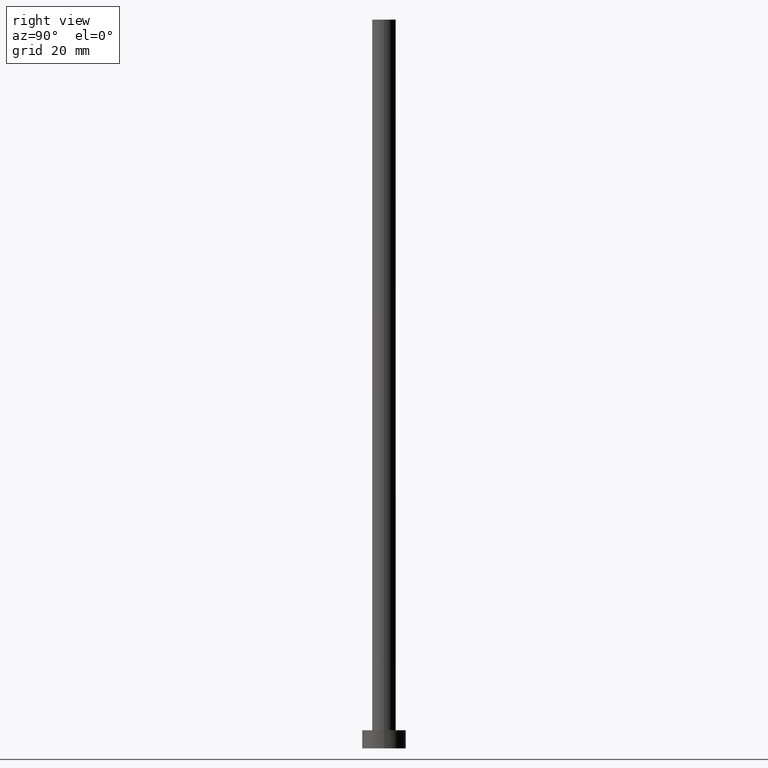
[diagram: clean part render]
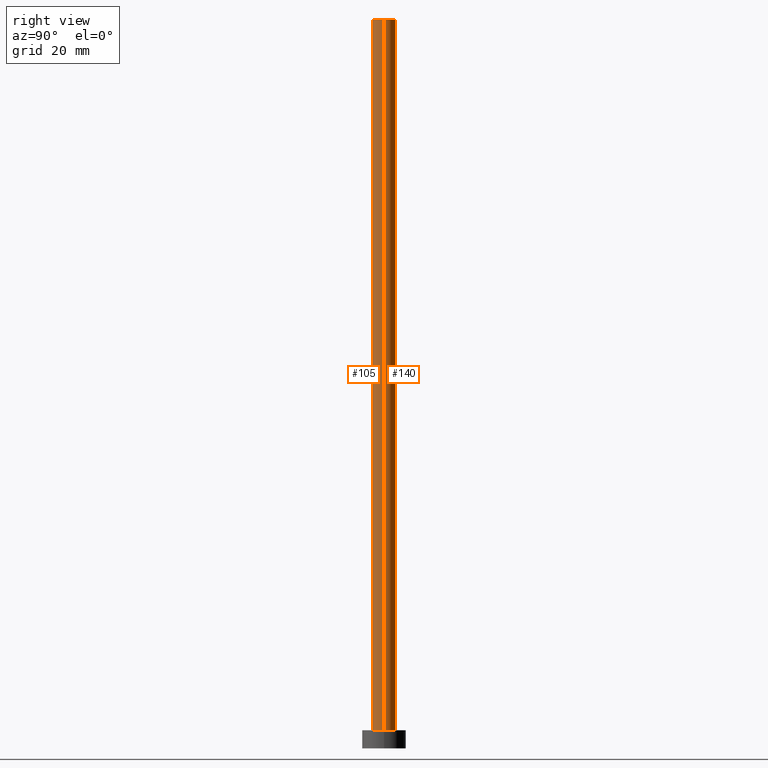
[diagram: same view with one multi-face feature highlighted, each face labeled with its STEP entity id]
A machine part, right view. The highlighted faces form ONE feature: a constant-radius fillet chain: 2 tangent blend faces with common blend radius 3.25 mm. The faces share edges in the B-rep.
Their STEP definitions:
[1] entity #105 (Cylinder):
#7 = VECTOR ( 'NONE', #47, 1000.000000000000000 ) ;
#9 = EDGE_CURVE ( 'NONE', #182, #213, #139, .T. ) ;
#10 = DIRECTION ( 'NONE',  ( 1.000000000000000000, 0.000000000000000000, 0.000000000000000000 ) ) ;
#24 = VERTEX_POINT ( 'NONE', #202 ) ;
#28 = ORIENTED_EDGE ( 'NONE', *, *, #206, .T. ) ;
#33 = ORIENTED_EDGE ( 'NONE', *, *, #9, .T. ) ;
#35 = ORIENTED_EDGE ( 'NONE', *, *, #44, .F. ) ;
#44 = EDGE_CURVE ( 'NONE', #71, #24, #45, .T. ) ;
#45 = LINE ( 'NONE', #200, #189 ) ;
#47 = DIRECTION ( 'NONE',  ( -0.000000000000000000, -0.000000000000000000, -1.000000000000000000 ) ) ;
#71 = VERTEX_POINT ( 'NONE', #142 ) ;
#72 = CYLINDRICAL_SURFACE ( 'NONE', #111, 3.250000000000000444 ) ;
#78 = FACE_OUTER_BOUND ( 'NONE', #253, .T. ) ;
#79 = EDGE_CURVE ( 'NONE', #182, #71, #216, .T. ) ;
#90 = DIRECTION ( 'NONE',  ( 1.000000000000000000, 0.000000000000000000, 0.000000000000000000 ) ) ;
#105 = ADVANCED_FACE ( 'NONE', ( #78 ), #72, .T. ) ;
#111 = AXIS2_PLACEMENT_3D ( 'NONE', #125, #133, #229 ) ;
#122 = AXIS2_PLACEMENT_3D ( 'NONE', #190, #207, #10 ) ;
#125 = CARTESIAN_POINT ( 'NONE',  ( 0.000000000000000000, 0.000000000000000000, 200.0000000000000000 ) ) ;
#133 = DIRECTION ( 'NONE',  ( -0.000000000000000000, -0.000000000000000000, -1.000000000000000000 ) ) ;
#139 = LINE ( 'NONE', #156, #7 ) ;
#141 = AXIS2_PLACEMENT_3D ( 'NONE', #226, #188, #90 ) ;
#142 = CARTESIAN_POINT ( 'NONE',  ( 3.250000000000000444, 3.980102097228898231E-16, 200.0000000000000000 ) ) ;
#156 = CARTESIAN_POINT ( 'NONE',  ( -3.250000000000000444, 0.000000000000000000, 200.0000000000000000 ) ) ;
#182 = VERTEX_POINT ( 'NONE', #192 ) ;
#184 = CIRCLE ( 'NONE', #122, 3.250000000000000444 ) ;
#188 = DIRECTION ( 'NONE',  ( 0.000000000000000000, 0.000000000000000000, 1.000000000000000000 ) ) ;
#189 = VECTOR ( 'NONE', #205, 1000.000000000000000 ) ;
#190 = CARTESIAN_POINT ( 'NONE',  ( 0.000000000000000000, 0.000000000000000000, 5.000000000000000000 ) ) ;
#192 = CARTESIAN_POINT ( 'NONE',  ( -3.250000000000000444, 0.000000000000000000, 200.0000000000000000 ) ) ;
#200 = CARTESIAN_POINT ( 'NONE',  ( 3.250000000000000444, 3.980102097228898231E-16, 200.0000000000000000 ) ) ;
#202 = CARTESIAN_POINT ( 'NONE',  ( 3.250000000000000444, 3.980102097228898231E-16, 5.000000000000000000 ) ) ;
#205 = DIRECTION ( 'NONE',  ( -0.000000000000000000, -0.000000000000000000, -1.000000000000000000 ) ) ;
#206 = EDGE_CURVE ( 'NONE', #213, #24, #184, .T. ) ;
#207 = DIRECTION ( 'NONE',  ( 0.000000000000000000, 0.000000000000000000, 1.000000000000000000 ) ) ;
#213 = VERTEX_POINT ( 'NONE', #250 ) ;
#216 = CIRCLE ( 'NONE', #141, 3.250000000000000444 ) ;
#226 = CARTESIAN_POINT ( 'NONE',  ( 0.000000000000000000, 0.000000000000000000, 200.0000000000000000 ) ) ;
#229 = DIRECTION ( 'NONE',  ( -1.000000000000000000, 0.000000000000000000, 0.000000000000000000 ) ) ;
#234 = ORIENTED_EDGE ( 'NONE', *, *, #79, .F. ) ;
#250 = CARTESIAN_POINT ( 'NONE',  ( -3.250000000000000444, 0.000000000000000000, 5.000000000000000000 ) ) ;
#253 = EDGE_LOOP ( 'NONE', ( #35, #234, #33, #28 ) ) ;
[2] entity #140 (Cylinder):
#1 = AXIS2_PLACEMENT_3D ( 'NONE', #92, #51, #233 ) ;
#6 = AXIS2_PLACEMENT_3D ( 'NONE', #149, #11, #191 ) ;
#7 = VECTOR ( 'NONE', #47, 1000.000000000000000 ) ;
#9 = EDGE_CURVE ( 'NONE', #182, #213, #139, .T. ) ;
#11 = DIRECTION ( 'NONE',  ( 0.000000000000000000, 0.000000000000000000, 1.000000000000000000 ) ) ;
#12 = CIRCLE ( 'NONE', #6, 3.250000000000000444 ) ;
#14 = CYLINDRICAL_SURFACE ( 'NONE', #1, 3.250000000000000444 ) ;
#15 = ORIENTED_EDGE ( 'NONE', *, *, #31, .T. ) ;
#24 = VERTEX_POINT ( 'NONE', #202 ) ;
#31 = EDGE_CURVE ( 'NONE', #24, #213, #115, .T. ) ;
#44 = EDGE_CURVE ( 'NONE', #71, #24, #45, .T. ) ;
#45 = LINE ( 'NONE', #200, #189 ) ;
#47 = DIRECTION ( 'NONE',  ( -0.000000000000000000, -0.000000000000000000, -1.000000000000000000 ) ) ;
#51 = DIRECTION ( 'NONE',  ( -0.000000000000000000, -0.000000000000000000, -1.000000000000000000 ) ) ;
#71 = VERTEX_POINT ( 'NONE', #142 ) ;
#85 = EDGE_LOOP ( 'NONE', ( #112, #145, #15, #98 ) ) ;
#92 = CARTESIAN_POINT ( 'NONE',  ( 0.000000000000000000, 0.000000000000000000, 200.0000000000000000 ) ) ;
#98 = ORIENTED_EDGE ( 'NONE', *, *, #9, .F. ) ;
#112 = ORIENTED_EDGE ( 'NONE', *, *, #117, .F. ) ;
#115 = CIRCLE ( 'NONE', #232, 3.250000000000000444 ) ;
#117 = EDGE_CURVE ( 'NONE', #71, #182, #12, .T. ) ;
#124 = CARTESIAN_POINT ( 'NONE',  ( 0.000000000000000000, 0.000000000000000000, 5.000000000000000000 ) ) ;
#139 = LINE ( 'NONE', #156, #7 ) ;
#140 = ADVANCED_FACE ( 'NONE', ( #148 ), #14, .T. ) ;
#142 = CARTESIAN_POINT ( 'NONE',  ( 3.250000000000000444, 3.980102097228898231E-16, 200.0000000000000000 ) ) ;
#145 = ORIENTED_EDGE ( 'NONE', *, *, #44, .T. ) ;
#148 = FACE_OUTER_BOUND ( 'NONE', #85, .T. ) ;
#149 = CARTESIAN_POINT ( 'NONE',  ( 0.000000000000000000, 0.000000000000000000, 200.0000000000000000 ) ) ;
#156 = CARTESIAN_POINT ( 'NONE',  ( -3.250000000000000444, 0.000000000000000000, 200.0000000000000000 ) ) ;
#182 = VERTEX_POINT ( 'NONE', #192 ) ;
#189 = VECTOR ( 'NONE', #205, 1000.000000000000000 ) ;
#191 = DIRECTION ( 'NONE',  ( 1.000000000000000000, 0.000000000000000000, 0.000000000000000000 ) ) ;
#192 = CARTESIAN_POINT ( 'NONE',  ( -3.250000000000000444, 0.000000000000000000, 200.0000000000000000 ) ) ;
#200 = CARTESIAN_POINT ( 'NONE',  ( 3.250000000000000444, 3.980102097228898231E-16, 200.0000000000000000 ) ) ;
#202 = CARTESIAN_POINT ( 'NONE',  ( 3.250000000000000444, 3.980102097228898231E-16, 5.000000000000000000 ) ) ;
#205 = DIRECTION ( 'NONE',  ( -0.000000000000000000, -0.000000000000000000, -1.000000000000000000 ) ) ;
#213 = VERTEX_POINT ( 'NONE', #250 ) ;
#232 = AXIS2_PLACEMENT_3D ( 'NONE', #124, #241, #244 ) ;
#233 = DIRECTION ( 'NONE',  ( -1.000000000000000000, 0.000000000000000000, 0.000000000000000000 ) ) ;
#241 = DIRECTION ( 'NONE',  ( 0.000000000000000000, 0.000000000000000000, 1.000000000000000000 ) ) ;
#244 = DIRECTION ( 'NONE',  ( 1.000000000000000000, 0.000000000000000000, 0.000000000000000000 ) ) ;
#250 = CARTESIAN_POINT ( 'NONE',  ( -3.250000000000000444, 0.000000000000000000, 5.000000000000000000 ) ) ;